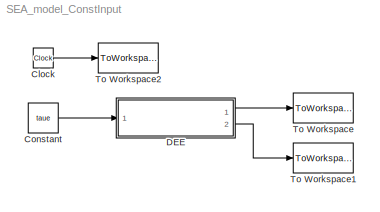
MODEL SEA_model_ConstInput
KIND model
BLOCK [Clock] Clock
  Decimation = 10
BLOCK [Constant] Constant
  OutDataType = sfix(16)
  OutScaling = 2^0
  Value = taue
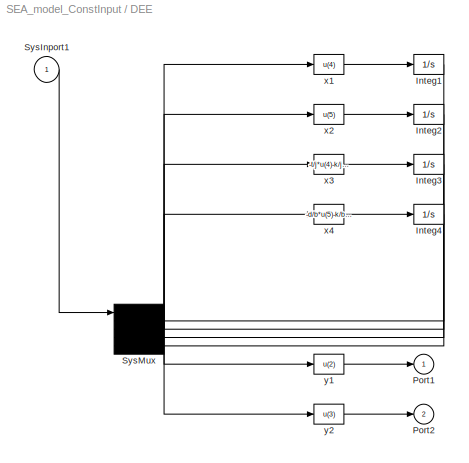
BLOCK [SubSystem] DEE
  FunctionWithSeparateData = off
  MaskDisplay = disp('Differential Equation\\n Editor')
  MaskHideContents = off
  MaskIconFrame = on
  MaskIconOpaque = on
  MaskIconRotate = none
  MaskIconUnits = autoscale
  MaskType = Differential Equation Editor (DEE)
  MinAlgLoopOccurrences = off
  Opaque = off
  OpenFcn = diffeqed
  Ports = [1, 2]
  PropExecContextOutsideSubsystem = off
  RTWSystemCode = Auto
  RequestExecContextInheritance = off
BLOCK [Integrator] DEE/Integ1
  InitialCondition = X0(1)
  Ports = [1, 1]
BLOCK [Integrator] DEE/Integ2
  InitialCondition = X0(2)
  Ports = [1, 1]
BLOCK [Integrator] DEE/Integ3
  InitialCondition = X0(3)
  Ports = [1, 1]
BLOCK [Integrator] DEE/Integ4
  InitialCondition = X0(4)
  Ports = [1, 1]
BLOCK [Outport] DEE/Port1
  IconDisplay = Port number
BLOCK [Outport] DEE/Port2
  IconDisplay = Port number
  Port = 2
BLOCK [Inport] DEE/SysInport1
  IconDisplay = Port number
BLOCK [Mux] DEE/SysMux
  Inputs = 5
  Ports = [5, 1]
BLOCK [Fcn] DEE/x1
  Expr = u(4)
BLOCK [Fcn] DEE/x2
  Expr = u(5)
BLOCK [Fcn] DEE/x3
  Expr = -t/j*u(4)-k/j*(u(2)-u(3))-m*g*l/j*cos(u(2))
BLOCK [Fcn] DEE/x4
  Expr = -d/b*u(5)-k/b*(u(3)-u(2))+1/b*u
BLOCK [Fcn] DEE/y1
  Expr = u(2)
BLOCK [Fcn] DEE/y2
  Expr = u(3)
BLOCK [ToWorkspace] To Workspace
  MaxDataPoints = inf
  SampleTime = -1
  SaveFormat = Array
  VariableName = q
BLOCK [ToWorkspace] To Workspace1
  MaxDataPoints = inf
  SampleTime = -1
  SaveFormat = Array
  VariableName = theta
BLOCK [ToWorkspace] To Workspace2
  MaxDataPoints = inf
  SampleTime = -1
  SaveFormat = Array
  VariableName = time
LINE Clock:1 -> To Workspace2:1
LINE Constant:1 -> DEE:1
LINE DEE/Integ1:1 -> DEE/SysMux:2
LINE DEE/Integ2:1 -> DEE/SysMux:3
LINE DEE/Integ3:1 -> DEE/SysMux:4
LINE DEE/Integ4:1 -> DEE/SysMux:5
LINE DEE/SysInport1:1 -> DEE/SysMux:1
NET DEE/SysMux:1 -> DEE/x1:1, DEE/x2:1, DEE/x3:1, DEE/x4:1, DEE/y1:1, DEE/y2:1
LINE DEE/x1:1 -> DEE/Integ1:1
LINE DEE/x2:1 -> DEE/Integ2:1
LINE DEE/x3:1 -> DEE/Integ3:1
LINE DEE/x4:1 -> DEE/Integ4:1
LINE DEE/y1:1 -> DEE/Port1:1
LINE DEE/y2:1 -> DEE/Port2:1
LINE DEE:1 -> To Workspace:1
LINE DEE:2 -> To Workspace1:1
note: NET lines group one-source signal fan-out (src -> all destinations, sorted); 1:1 wires keep LINE
